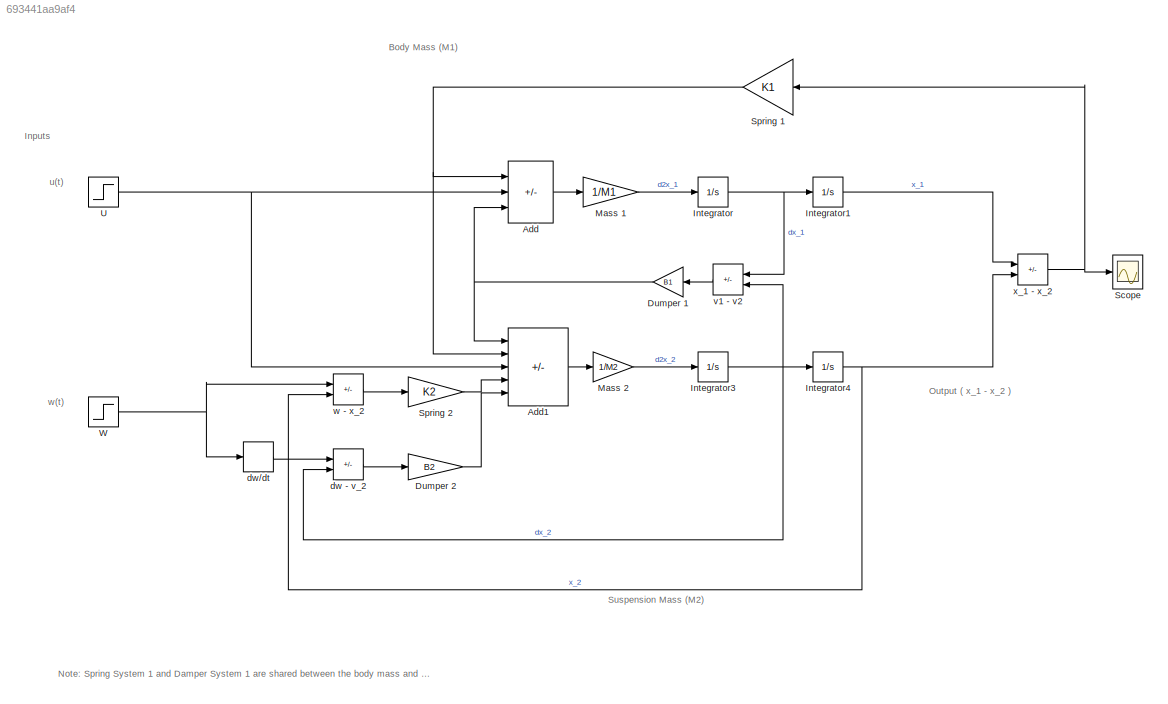
MODEL slx_693441aa9af4
KIND model
CONFIG AbsTol = auto
CONFIG EnableMultiTasking = off
CONFIG FixedStep = 0.001
CONFIG MaxStep = auto
CONFIG MinStep = auto
CONFIG RelTol = 1e-3
CONFIG SampleTimeConstraint = Unconstrained
CONFIG SolverName = FixedStepAuto
CONFIG StartTime = 0.0
CONFIG StopTime = 100
WORKSPACE source: external: MATLAB File  (data not in archive)
BLOCK [Sum] Add
  IconShape = rectangular
  Inputs = -+-
  Ports = [3, 1]
BLOCK [Sum] Add1
  IconShape = rectangular
  Inputs = ++-++
  Ports = [5, 1]
BLOCK [Gain] Dumper 1
  Gain = B1
BLOCK [Gain] Dumper 2
  Gain = B2
BLOCK [Integrator] Integrator
  Ports = [1, 1]
BLOCK [Integrator] Integrator1
  Ports = [1, 1]
BLOCK [Integrator] Integrator3
  Ports = [1, 1]
BLOCK [Integrator] Integrator4
  Ports = [1, 1]
BLOCK [Gain] Mass 1
  Gain = 1/M1
BLOCK [Gain] Mass 2
  Gain = 1/M2
BLOCK [Scope] Scope
  Floating = off
  NumInputPorts = 1
  Ports = [1]
  ScopeSpecificationString = Simulink.scopes.TimeScopeBlockCfg('CurrentConfiguration', extmgr.ConfigurationSet(extmgr.Configuration('Core','General UI',true),extmgr.Configuration('Core','Source UI',true),extmgr.Configuration('Sources','WiredSimulink',true),extmgr.Configuration('Visuals','Time Domain',true,'SerializedDisplays',{struct('MinYLimReal','-0.10298','MaxYLimReal','0.11403','YLabelReal','','MinYLimMag','0.00000','MaxY...<+1404ch>
BLOCK [Gain] Spring 1
  Gain = K1
BLOCK [Gain] Spring 2
  Gain = K2
BLOCK [Step] U
  After = 0
  Description = U
  SampleTime = 0
  Time = 0
BLOCK [Step] W
  After = -0.1
  SampleTime = 0
  Time = 5
BLOCK [Sum] dw - v_2
  IconShape = rectangular
  Inputs = +-
  Ports = [2, 1]
BLOCK [Derivative] dw//dt
BLOCK [Sum] v1 - v2
  IconShape = rectangular
  Inputs = +-
  Ports = [2, 1]
BLOCK [Sum] w - x_2
  IconShape = rectangular
  Inputs = +-
  Ports = [2, 1]
BLOCK [Sum] x_1 - x_2
  IconShape = rectangular
  Inputs = +-
  Ports = [2, 1]
ANNOTATION (root): Note: Spring System 1 and Damper System 1 are shared between the body mass and the suspension mass, affecting both masses simultaneously.
ANNOTATION (root): Inputs
ANNOTATION (root): Output ( x_1 - x_2 )
ANNOTATION (root): Body Mass (M1)
ANNOTATION (root): Suspension Mass (M2)
ANNOTATION (root): u(t)
ANNOTATION (root): w(t)
LINE Add1:1 -> Mass 2:1
LINE Add:1 -> Mass 1:1
NET Dumper 1:1 -> Add1:1, Add:3
LINE Dumper 2:1 -> Add1:5
LINE Integrator1:1 -> x_1 - x_2:1
NET Integrator3:1 -> Integrator4:1, dw - v_2:2, v1 - v2:2
NET Integrator4:1 -> w - x_2:2, x_1 - x_2:2
NET Integrator:1 -> Integrator1:1, v1 - v2:1
LINE Mass 1:1 -> Integrator:1
LINE Mass 2:1 -> Integrator3:1
NET Spring 1:1 -> Add1:2, Add:1
LINE Spring 2:1 -> Add1:4
NET U:1 -> Add1:3, Add:2
NET W:1 -> dw//dt:1, w - x_2:1
LINE dw - v_2:1 -> Dumper 2:1
LINE dw//dt:1 -> dw - v_2:1
LINE v1 - v2:1 -> Dumper 1:1
LINE w - x_2:1 -> Spring 2:1
NET x_1 - x_2:1 -> Scope:1, Spring 1:1
note: NET lines group one-source signal fan-out (src -> all destinations, sorted); 1:1 wires keep LINE
